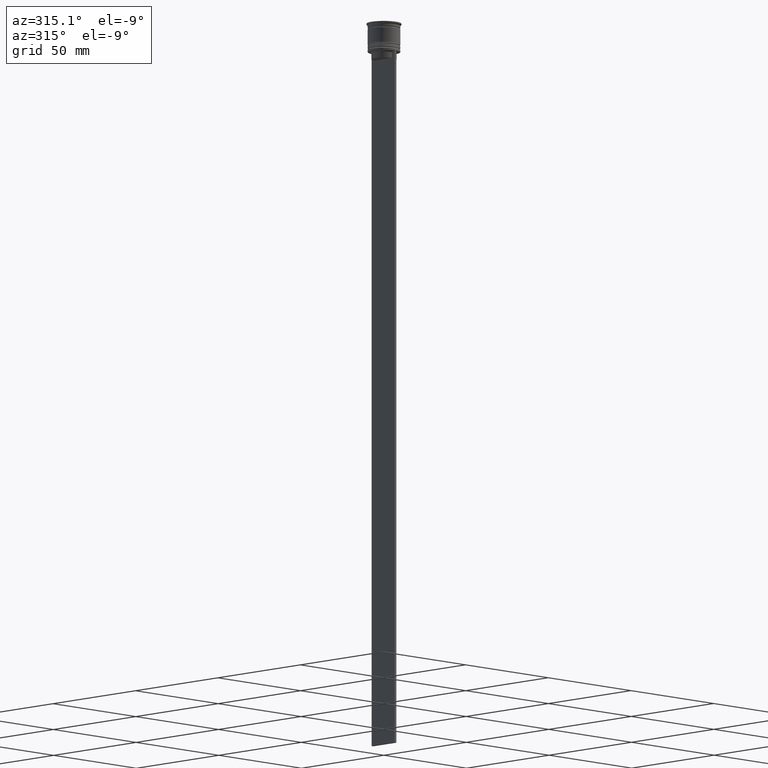
[diagram: clean part render]
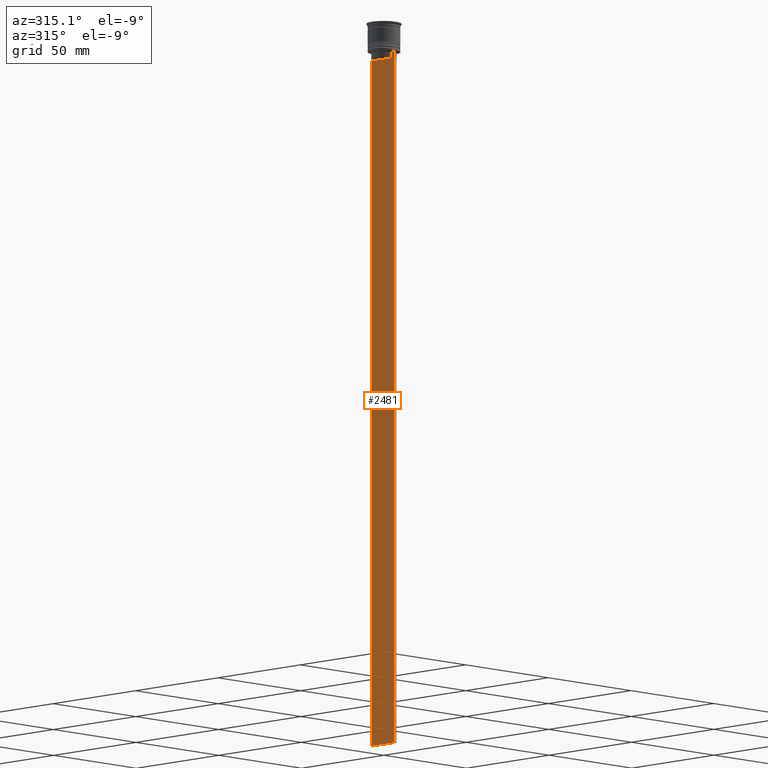
[diagram: same view with one face highlighted and labeled with its STEP entity id]
A machine part, auxiliary view. The second image highlights one B-rep face of the part: STEP entity #2481.
In plain terms, the highlighted planar face has unit normal (-1, 0, 0).
Its self-contained STEP definition (entity closure, byte-faithful):
#26 = ORIENTED_EDGE ( 'NONE', *, *, #745, .F. ) ;
#77 = CARTESIAN_POINT ( 'NONE',  ( -0.5000000000000000000, -5.878775382679629402, -12.50000000000000000 ) ) ;
#99 = CARTESIAN_POINT ( 'NONE',  ( -0.5000000000000000000, 7.000000000000002665, -312.5000000000000000 ) ) ;
#107 = CARTESIAN_POINT ( 'NONE',  ( -0.5000000000000000000, -5.376802023508029826, -13.00000000000000178 ) ) ;
#123 = DIRECTION ( 'NONE',  ( 0.000000000000000000, 0.000000000000000000, 1.000000000000000000 ) ) ;
#215 = LINE ( 'NONE', #1719, #550 ) ;
#271 = EDGE_CURVE ( 'NONE', #1718, #487, #311, .T. ) ;
#299 = B_SPLINE_CURVE_WITH_KNOTS ( 'NONE', 3,
 ( #2048, #1458, #2456, #722 ),
 .UNSPECIFIED., .F., .F.,
 ( 4, 4 ),
 ( 0.01003009312103698807, 0.01073859663834952557 ),
 .UNSPECIFIED. ) ;
#309 = EDGE_CURVE ( 'NONE', #1896, #1718, #299, .T. ) ;
#311 = LINE ( 'NONE', #2233, #2417 ) ;
#347 = CARTESIAN_POINT ( 'NONE',  ( -0.5000000000000000000, -6.999999999999997335, -12.50000000000000000 ) ) ;
#381 = EDGE_CURVE ( 'NONE', #1121, #471, #2127, .T. ) ;
#389 = ORIENTED_EDGE ( 'NONE', *, *, #309, .F. ) ;
#404 = VECTOR ( 'NONE', #2091, 1000.000000000000000 ) ;
#463 = ORIENTED_EDGE ( 'NONE', *, *, #496, .F. ) ;
#464 = CARTESIAN_POINT ( 'NONE',  ( -0.5000000000000000000, 7.000000000000002665, 1.535668847618198329 ) ) ;
#471 = VERTEX_POINT ( 'NONE', #1007 ) ;
#487 = VERTEX_POINT ( 'NONE', #1300 ) ;
#496 = EDGE_CURVE ( 'NONE', #487, #1121, #2336, .T. ) ;
#522 = LINE ( 'NONE', #347, #1804 ) ;
#541 = CARTESIAN_POINT ( 'NONE',  ( -0.5000000000000000000, -6.999999999999997335, -312.5000000000000000 ) ) ;
#550 = VECTOR ( 'NONE', #1745, 1000.000000000000000 ) ;
#644 = EDGE_CURVE ( 'NONE', #2229, #1450, #1816, .T. ) ;
#662 = DIRECTION ( 'NONE',  ( 0.000000000000000000, -1.000000000000000000, 0.000000000000000000 ) ) ;
#682 = VECTOR ( 'NONE', #662, 1000.000000000000000 ) ;
#722 = CARTESIAN_POINT ( 'NONE',  ( -0.5000000000000000000, 5.376802023508029826, -13.00000000000000178 ) ) ;
#734 = CARTESIAN_POINT ( 'NONE',  ( -0.5000000000000000000, -5.544156999454441959, -12.83336396790503642 ) ) ;
#745 = EDGE_CURVE ( 'NONE', #973, #1333, #1215, .T. ) ;
#782 = EDGE_CURVE ( 'NONE', #2229, #1367, #2257, .T. ) ;
#801 = EDGE_CURVE ( 'NONE', #1392, #1450, #2079, .T. ) ;
#814 = EDGE_CURVE ( 'NONE', #2415, #973, #522, .T. ) ;
#847 = CARTESIAN_POINT ( 'NONE',  ( -0.5000000000000000000, -6.999999999999997335, -12.50000000000000000 ) ) ;
#854 = EDGE_LOOP ( 'NONE', ( #389, #2374, #2129, #2441, #2192, #1713, #26, #2276, #1950, #2222, #463, #2028 ) ) ;
#861 = CARTESIAN_POINT ( 'NONE',  ( -0.5000000000000000000, -5.711478856069293286, -12.66669469529570335 ) ) ;
#897 = B_SPLINE_CURVE_WITH_KNOTS ( 'NONE', 3,
 ( #107, #734, #861, #1859 ),
 .UNSPECIFIED., .F., .F.,
 ( 4, 4 ),
 ( 0.02539176325380714666, 0.02610162431828674801 ),
 .UNSPECIFIED. ) ;
#902 = DIRECTION ( 'NONE',  ( 0.000000000000000000, -1.000000000000000000, 0.000000000000000000 ) ) ;
#973 = VERTEX_POINT ( 'NONE', #2331 ) ;
#974 = DIRECTION ( 'NONE',  ( 0.000000000000000000, -1.000000000000000000, 0.000000000000000000 ) ) ;
#1007 = CARTESIAN_POINT ( 'NONE',  ( -0.5000000000000000000, -5.376802023508029826, -13.00000000000000178 ) ) ;
#1121 = VERTEX_POINT ( 'NONE', #2168 ) ;
#1124 = CARTESIAN_POINT ( 'NONE',  ( -0.5000000000000000000, -6.999999999999997335, 1.535668847618198329 ) ) ;
#1154 = CARTESIAN_POINT ( 'NONE',  ( -0.5000000000000000000, -5.376802023508029826, 0.000000000000000000 ) ) ;
#1161 = VECTOR ( 'NONE', #1985, 1000.000000000000000 ) ;
#1173 = CARTESIAN_POINT ( 'NONE',  ( -0.5000000000000000000, 5.376802023508029826, -13.00000000000000178 ) ) ;
#1215 = LINE ( 'NONE', #847, #682 ) ;
#1259 = DIRECTION ( 'NONE',  ( 0.000000000000000000, 1.000000000000000000, 0.000000000000000000 ) ) ;
#1261 = EDGE_CURVE ( 'NONE', #471, #2415, #897, .T. ) ;
#1284 = DIRECTION ( 'NONE',  ( -1.000000000000000000, 0.000000000000000000, 0.000000000000000000 ) ) ;
#1300 = CARTESIAN_POINT ( 'NONE',  ( -0.5000000000000000000, 5.376802023508029826, -15.50000000000000000 ) ) ;
#1319 = VECTOR ( 'NONE', #1259, 1000.000000000000000 ) ;
#1328 = CARTESIAN_POINT ( 'NONE',  ( -0.5000000000000000000, 7.000000000000002665, -12.50000000000000000 ) ) ;
#1333 = VERTEX_POINT ( 'NONE', #1736 ) ;
#1367 = VERTEX_POINT ( 'NONE', #1549 ) ;
#1392 = VERTEX_POINT ( 'NONE', #541 ) ;
#1421 = EDGE_CURVE ( 'NONE', #1367, #1896, #215, .T. ) ;
#1444 = VECTOR ( 'NONE', #2267, 1000.000000000000000 ) ;
#1450 = VERTEX_POINT ( 'NONE', #99 ) ;
#1458 = CARTESIAN_POINT ( 'NONE',  ( -0.5000000000000000000, 5.711478846560141598, -12.66669470477064685 ) ) ;
#1478 = VECTOR ( 'NONE', #974, 1000.000000000000000 ) ;
#1549 = CARTESIAN_POINT ( 'NONE',  ( -0.5000000000000000000, 6.881860213634102053, -12.50000000000000000 ) ) ;
#1626 = CARTESIAN_POINT ( 'NONE',  ( -0.5000000000000000000, 5.878775382679629402, -12.50000000000000000 ) ) ;
#1651 = CARTESIAN_POINT ( 'NONE',  ( -0.5000000000000000000, -6.999999999999997335, -312.5000000000000000 ) ) ;
#1659 = PLANE ( 'NONE',  #1980 ) ;
#1688 = LINE ( 'NONE', #2468, #1444 ) ;
#1696 = DIRECTION ( 'NONE',  ( 0.000000000000000000, 0.000000000000000000, -1.000000000000000000 ) ) ;
#1713 = ORIENTED_EDGE ( 'NONE', *, *, #2144, .F. ) ;
#1718 = VERTEX_POINT ( 'NONE', #1173 ) ;
#1719 = CARTESIAN_POINT ( 'NONE',  ( -0.5000000000000000000, -6.999999999999997335, -12.50000000000000000 ) ) ;
#1736 = CARTESIAN_POINT ( 'NONE',  ( -0.5000000000000000000, -6.999999999999997335, -12.50000000000000000 ) ) ;
#1745 = DIRECTION ( 'NONE',  ( 0.000000000000000000, -1.000000000000000000, 0.000000000000000000 ) ) ;
#1804 = VECTOR ( 'NONE', #902, 1000.000000000000000 ) ;
#1816 = LINE ( 'NONE', #464, #1161 ) ;
#1859 = CARTESIAN_POINT ( 'NONE',  ( -0.5000000000000000000, -5.878775382679629402, -12.50000000000000000 ) ) ;
#1896 = VERTEX_POINT ( 'NONE', #1626 ) ;
#1901 = CARTESIAN_POINT ( 'NONE',  ( -0.5000000000000000000, -6.999999999999997335, -12.50000000000000000 ) ) ;
#1950 = ORIENTED_EDGE ( 'NONE', *, *, #1261, .F. ) ;
#1980 = AXIS2_PLACEMENT_3D ( 'NONE', #1124, #1284, #123 ) ;
#1985 = DIRECTION ( 'NONE',  ( 0.000000000000000000, 0.000000000000000000, -1.000000000000000000 ) ) ;
#2028 = ORIENTED_EDGE ( 'NONE', *, *, #271, .F. ) ;
#2048 = CARTESIAN_POINT ( 'NONE',  ( -0.5000000000000000000, 5.878775382679629402, -12.50000000000000000 ) ) ;
#2079 = LINE ( 'NONE', #1651, #1319 ) ;
#2091 = DIRECTION ( 'NONE',  ( 0.000000000000000000, -1.000000000000000000, 0.000000000000000000 ) ) ;
#2127 = LINE ( 'NONE', #1154, #2384 ) ;
#2129 = ORIENTED_EDGE ( 'NONE', *, *, #782, .F. ) ;
#2144 = EDGE_CURVE ( 'NONE', #1333, #1392, #1688, .T. ) ;
#2153 = CARTESIAN_POINT ( 'NONE',  ( -0.5000000000000000000, 5.400000000000003908, -15.50000000000000000 ) ) ;
#2168 = CARTESIAN_POINT ( 'NONE',  ( -0.5000000000000000000, -5.376802023508029826, -15.50000000000000000 ) ) ;
#2192 = ORIENTED_EDGE ( 'NONE', *, *, #801, .F. ) ;
#2222 = ORIENTED_EDGE ( 'NONE', *, *, #381, .F. ) ;
#2228 = FACE_OUTER_BOUND ( 'NONE', #854, .T. ) ;
#2229 = VERTEX_POINT ( 'NONE', #1328 ) ;
#2233 = CARTESIAN_POINT ( 'NONE',  ( -0.5000000000000000000, 5.376802023508029826, 0.000000000000000000 ) ) ;
#2257 = LINE ( 'NONE', #1901, #404 ) ;
#2267 = DIRECTION ( 'NONE',  ( 0.000000000000000000, 0.000000000000000000, -1.000000000000000000 ) ) ;
#2276 = ORIENTED_EDGE ( 'NONE', *, *, #814, .F. ) ;
#2279 = DIRECTION ( 'NONE',  ( -0.000000000000000000, -0.000000000000000000, 1.000000000000000000 ) ) ;
#2331 = CARTESIAN_POINT ( 'NONE',  ( -0.5000000000000000000, -6.881860213634102053, -12.50000000000000000 ) ) ;
#2336 = LINE ( 'NONE', #2153, #1478 ) ;
#2374 = ORIENTED_EDGE ( 'NONE', *, *, #1421, .F. ) ;
#2384 = VECTOR ( 'NONE', #2279, 1000.000000000000000 ) ;
#2415 = VERTEX_POINT ( 'NONE', #77 ) ;
#2417 = VECTOR ( 'NONE', #1696, 1000.000000000000000 ) ;
#2441 = ORIENTED_EDGE ( 'NONE', *, *, #644, .T. ) ;
#2456 = CARTESIAN_POINT ( 'NONE',  ( -0.5000000000000000000, 5.544156989057553275, -12.83336397825725861 ) ) ;
#2468 = CARTESIAN_POINT ( 'NONE',  ( -0.5000000000000000000, -6.999999999999997335, 1.535668847618198329 ) ) ;
#2481 = ADVANCED_FACE ( 'NONE', ( #2228 ), #1659, .T. ) ;